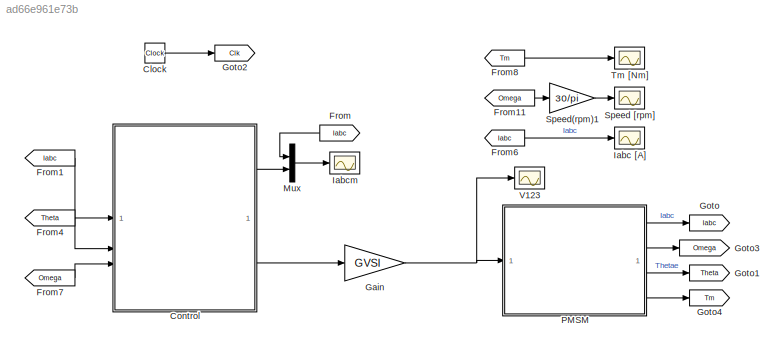
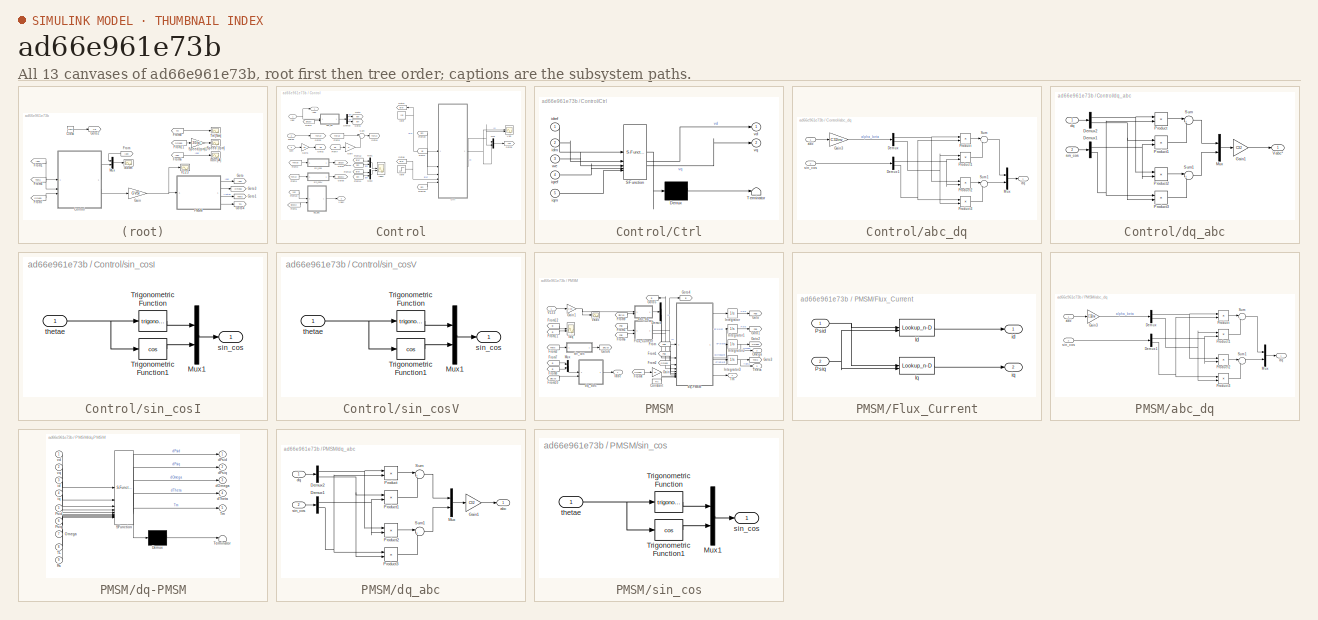
[diagram: thumbnail index - all 13 canvases of the model, root first then tree order]
MODEL slx_ad66e961e73b
KIND model
CONFIG AbsTol = auto
CONFIG EnableMultiTasking = off
CONFIG FixedStep = Tsim
CONFIG MaxStep = Tsim
CONFIG MinStep = auto
CONFIG RelTol = 1e-3
CONFIG SampleTimeConstraint = Unconstrained
CONFIG SolverName = ode23tb
CONFIG StartTime = 0.0
CONFIG StopTime = 1
BLOCK [Clock] Clock
  Decimation = 1
  NameLocation = top
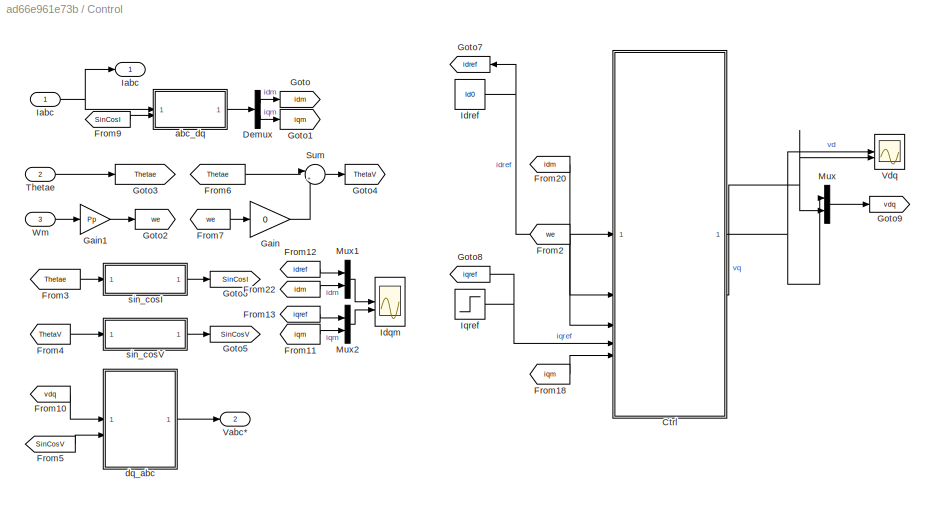
BLOCK [SubSystem] Control
BLOCK [SubSystem] Control/Ctrl
  ErrorFcn = Stateflow.Translate.translate
  PermitHierarchicalResolution = ExplicitOnly
  SFBlockType = MATLAB Function
  TreatAsAtomicUnit = on
BLOCK [Demux] Control/Ctrl/ Demux 
  Outputs = 1
BLOCK [S-Function] Control/Ctrl/ SFunction 
  EnableBusSupport = off
  FunctionName = sf_sfun
  Parameters = Kid,Kiq,Kpd,Kpq,Ld0,Lq0,Psif0,Ts,Ud0,Uq0,Vd0,Vq0
  PortCounts = [5 3]
  SFcnIsStateOwnerBlock = off
  SFunctionDeploymentMode = off
  Tag = Stateflow S-Function 4
BLOCK [Terminator] Control/Ctrl/ Terminator 
BLOCK [Inport] Control/Ctrl/idm
  Port = 2
BLOCK [Inport] Control/Ctrl/idref
BLOCK [Inport] Control/Ctrl/iqm
  Port = 5
BLOCK [Inport] Control/Ctrl/iqref
  Port = 4
BLOCK [Outport] Control/Ctrl/vd
BLOCK [Outport] Control/Ctrl/vq
  Port = 2
BLOCK [Inport] Control/Ctrl/we
  Port = 3
BLOCK [Demux] Control/Demux
  Outputs = 2
BLOCK [From] Control/From10
  GotoTag = vdq
  TagVisibility = global
BLOCK [From] Control/From11
  GotoTag = iqm
BLOCK [From] Control/From12
  GotoTag = idref
BLOCK [From] Control/From13
  GotoTag = iqref
BLOCK [From] Control/From18
  GotoTag = iqm
BLOCK [From] Control/From2
  GotoTag = we
BLOCK [From] Control/From20
  GotoTag = idm
BLOCK [From] Control/From22
  GotoTag = idm
BLOCK [From] Control/From3
  GotoTag = Thetae
BLOCK [From] Control/From4
  GotoTag = ThetaV
BLOCK [From] Control/From5
  GotoTag = SinCosV
BLOCK [From] Control/From6
  GotoTag = Thetae
BLOCK [From] Control/From7
  GotoTag = we
BLOCK [From] Control/From9
  GotoTag = SinCosI
BLOCK [Gain] Control/Gain
  Gain = 0
BLOCK [Gain] Control/Gain1
  Gain = Pp
BLOCK [Goto] Control/Goto
  GotoTag = idm
BLOCK [Goto] Control/Goto1
  GotoTag = iqm
BLOCK [Goto] Control/Goto2
  GotoTag = we
BLOCK [Goto] Control/Goto3
  GotoTag = Thetae
BLOCK [Goto] Control/Goto4
  GotoTag = ThetaV
BLOCK [Goto] Control/Goto5
  GotoTag = SinCosV
BLOCK [Goto] Control/Goto6
  GotoTag = SinCosI
BLOCK [Goto] Control/Goto7
  GotoTag = idref
BLOCK [Goto] Control/Goto8
  GotoTag = iqref
BLOCK [Goto] Control/Goto9
  GotoTag = vdq
  TagVisibility = global
BLOCK [Inport] Control/Iabc
BLOCK [Outport] Control/Iabc 
BLOCK [Scope] Control/Idqm
  Floating = off
  NumInputPorts = 2
  ScopeSpecificationString = Simulink.scopes.TimeScopeBlockCfg('CurrentConfiguration', extmgr.ConfigurationSet(extmgr.Configuration('Core','General UI',true,'FigureColor',[1 1 1]),extmgr.Configuration('Core','Source UI',true),extmgr.Configuration('Sources','WiredSimulink',true,'DataLoggingVariableName','ScopeData1'),extmgr.Configuration('Visuals','Time Domain',true,'SerializedDisplays',{struct('MinYLimReal','82.74399','MaxYLi...<+1907ch>
BLOCK [Constant] Control/Idref
  Value = Id0
BLOCK [Step] Control/Iqref
  After = Iq0+10
  Before = Iq0
  Time = Tstep
BLOCK [Mux] Control/Mux
  DisplayOption = bar
  Inputs = 2
BLOCK [Mux] Control/Mux1
  DisplayOption = bar
  Inputs = 2
BLOCK [Mux] Control/Mux2
  DisplayOption = bar
  Inputs = 2
BLOCK [Sum] Control/Sum
  Inputs = |++
BLOCK [Inport] Control/Thetae
  Port = 2
BLOCK [Outport] Control/Vabc*
  Port = 2
BLOCK [Scope] Control/Vdq
  Floating = off
  NumInputPorts = 2
  ScopeSpecificationString = Simulink.scopes.TimeScopeBlockCfg('CurrentConfiguration', extmgr.ConfigurationSet(extmgr.Configuration('Core','General UI',true,'FigureColor',[1 1 1]),extmgr.Configuration('Core','Source UI',true),extmgr.Configuration('Sources','WiredSimulink',true,'DataLoggingVariableName','ScopeData2'),extmgr.Configuration('Visuals','Time Domain',true,'SerializedDisplays',{struct('MinYLimReal','-481.21462','MaxY...<+1669ch>
BLOCK [Inport] Control/Wm
  Port = 3
BLOCK [SubSystem] Control/abc_dq
BLOCK [Demux] Control/abc_dq/Demux
  DisplayOption = none
  Outputs = 2
BLOCK [Demux] Control/abc_dq/Demux1
  DisplayOption = none
  Outputs = 2
BLOCK [Gain] Control/abc_dq/Gain3
  Gain = C32inv
  Multiplication = Matrix(K*u)
  OutDataTypeStr = Inherit: Same as input
  ParamDataTypeStr = Inherit: Same as input
BLOCK [Mux] Control/abc_dq/Mux
  DisplayOption = bar
  Inputs = 2
BLOCK [Product] Control/abc_dq/Product
  InputSameDT = on
  OutDataTypeStr = Inherit: Same as first input
  RndMeth = Zero
  SaturateOnIntegerOverflow = on
BLOCK [Product] Control/abc_dq/Product1
  InputSameDT = on
  OutDataTypeStr = Inherit: Same as first input
  RndMeth = Zero
  SaturateOnIntegerOverflow = on
BLOCK [Product] Control/abc_dq/Product2
  InputSameDT = on
  OutDataTypeStr = Inherit: Same as first input
  RndMeth = Zero
  SaturateOnIntegerOverflow = on
BLOCK [Product] Control/abc_dq/Product3
  InputSameDT = on
  OutDataTypeStr = Inherit: Same as first input
  RndMeth = Zero
  SaturateOnIntegerOverflow = on
BLOCK [Sum] Control/abc_dq/Sum
  InputSameDT = on
  Inputs = |++
  OutDataTypeStr = Inherit: Same as first input
  SaturateOnIntegerOverflow = on
BLOCK [Sum] Control/abc_dq/Sum1
  InputSameDT = on
  Inputs = |-+
  OutDataTypeStr = Inherit: Same as first input
  SaturateOnIntegerOverflow = on
BLOCK [Inport] Control/abc_dq/abc
BLOCK [Outport] Control/abc_dq/dq
BLOCK [Inport] Control/abc_dq/sin_cos
  Port = 2
BLOCK [SubSystem] Control/dq_abc
BLOCK [Demux] Control/dq_abc/Demux1
  DisplayOption = none
  Outputs = 2
BLOCK [Demux] Control/dq_abc/Demux2
  DisplayOption = none
  Outputs = 2
BLOCK [Gain] Control/dq_abc/Gain1
  Gain = C32
  Multiplication = Matrix(K*u)
  OutDataTypeStr = Inherit: Same as input
  ParamDataTypeStr = Inherit: Same as input
BLOCK [Mux] Control/dq_abc/Mux
  DisplayOption = bar
  Inputs = 2
BLOCK [Product] Control/dq_abc/Product
  InputSameDT = on
  OutDataTypeStr = Inherit: Same as first input
  RndMeth = Zero
  SaturateOnIntegerOverflow = on
BLOCK [Product] Control/dq_abc/Product1
  InputSameDT = on
  OutDataTypeStr = Inherit: Same as first input
  RndMeth = Zero
  SaturateOnIntegerOverflow = on
BLOCK [Product] Control/dq_abc/Product2
  InputSameDT = on
  OutDataTypeStr = Inherit: Same as first input
  RndMeth = Zero
  SaturateOnIntegerOverflow = on
BLOCK [Product] Control/dq_abc/Product3
  InputSameDT = on
  OutDataTypeStr = Inherit: Same as first input
  RndMeth = Zero
  SaturateOnIntegerOverflow = on
BLOCK [Sum] Control/dq_abc/Sum
  InputSameDT = on
  Inputs = |+-
  OutDataTypeStr = Inherit: Same as first input
  SaturateOnIntegerOverflow = on
BLOCK [Sum] Control/dq_abc/Sum1
  InputSameDT = on
  Inputs = |++
  OutDataTypeStr = Inherit: Same as first input
  SaturateOnIntegerOverflow = on
BLOCK [Outport] Control/dq_abc/Vabc*
BLOCK [Inport] Control/dq_abc/dq
BLOCK [Inport] Control/dq_abc/sin_cos
  Port = 2
BLOCK [SubSystem] Control/sin_cosI
BLOCK [Mux] Control/sin_cosI/Mux1
  DisplayOption = bar
  Inputs = 2
BLOCK [Trigonometry] Control/sin_cosI/Trigonometric Function
BLOCK [Trigonometry] Control/sin_cosI/Trigonometric Function1
  Operator = cos
BLOCK [Outport] Control/sin_cosI/sin_cos
BLOCK [Inport] Control/sin_cosI/thetae
BLOCK [SubSystem] Control/sin_cosV
BLOCK [Mux] Control/sin_cosV/Mux1
  DisplayOption = bar
  Inputs = 2
BLOCK [Trigonometry] Control/sin_cosV/Trigonometric Function
BLOCK [Trigonometry] Control/sin_cosV/Trigonometric Function1
  Operator = cos
BLOCK [Outport] Control/sin_cosV/sin_cos
BLOCK [Inport] Control/sin_cosV/thetae
BLOCK [From] From
  GotoTag = Iabc
BLOCK [From] From1
  GotoTag = Iabc
BLOCK [From] From11
  GotoTag = Omega
BLOCK [From] From4
  GotoTag = Theta
BLOCK [From] From6
  GotoTag = Iabc
BLOCK [From] From7
  GotoTag = Omega
BLOCK [From] From8
  GotoTag = Tm
  TagVisibility = global
BLOCK [Gain] Gain
  Gain = GVSI
BLOCK [Goto] Goto
  GotoTag = Iabc
BLOCK [Goto] Goto1
  GotoTag = Theta
BLOCK [Goto] Goto2
  GotoTag = Clk
BLOCK [Goto] Goto3
  GotoTag = Omega
BLOCK [Goto] Goto4
  GotoTag = Tm
BLOCK [Scope] Iabc [A]
  Floating = off
  NumInputPorts = 1
  ScopeSpecificationString = Simulink.scopes.TimeScopeBlockCfg('CurrentConfiguration', extmgr.ConfigurationSet(extmgr.Configuration('Core','General UI',true,'FigureColor',[1 1 1]),extmgr.Configuration('Core','Source UI',true),extmgr.Configuration('Sources','WiredSimulink',true,'DataLoggingVariableName','ScopeData1','DataLogging',true,'DataLoggingSaveFormat','StructureWithTime'),extmgr.Configuration('Visuals','Time Domain',tru...<+1940ch>
BLOCK [Scope] Iabcm
  Floating = off
  NumInputPorts = 1
  ScopeSpecificationString = Simulink.scopes.TimeScopeBlockCfg('CurrentConfiguration', extmgr.ConfigurationSet(extmgr.Configuration('Core','General UI',true,'FigureColor',[1 1 1]),extmgr.Configuration('Core','Source UI',true),extmgr.Configuration('Sources','WiredSimulink',true,'DataLoggingVariableName','ScopeData1'),extmgr.Configuration('Visuals','Time Domain',true,'SerializedDisplays',{struct('MinYLimReal','-101.26957','MaxY...<+1790ch>
BLOCK [Mux] Mux
  DisplayOption = bar
  Inputs = 2
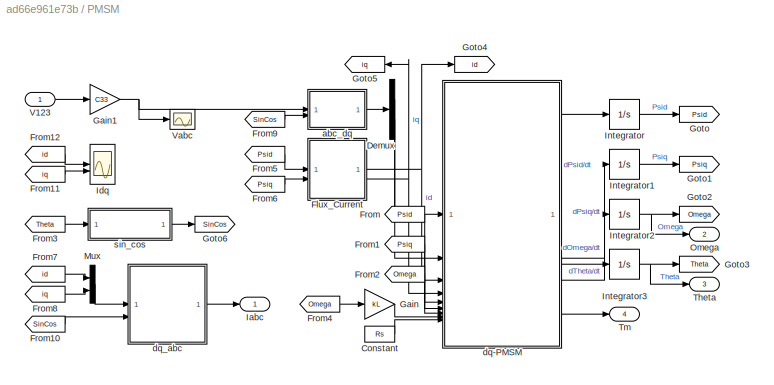
BLOCK [SubSystem] PMSM
BLOCK [Constant] PMSM/Constant
  Value = Rs
BLOCK [Demux] PMSM/Demux
  Outputs = 2
BLOCK [SubSystem] PMSM/Flux_Current
BLOCK [Lookup_n-D] PMSM/Flux_Current/Id
  BreakpointsForDimension1 = Psidv
  BreakpointsForDimension2 = Psiqv
  InputPortMap = u0,u1
  InternalRulePriority = Speed
  RndMeth = Simplest
  Table = Idd
BLOCK [Lookup_n-D] PMSM/Flux_Current/Iq
  BreakpointsForDimension1 = Psidv
  BreakpointsForDimension2 = Psiqv
  InputPortMap = u0,u1
  InternalRulePriority = Speed
  RndMeth = Simplest
  Table = Iqq
BLOCK [Inport] PMSM/Flux_Current/Psid
BLOCK [Inport] PMSM/Flux_Current/Psiq
  Port = 2
BLOCK [Outport] PMSM/Flux_Current/id
BLOCK [Outport] PMSM/Flux_Current/iq
  Port = 2
BLOCK [From] PMSM/From
  GotoTag = Psid
BLOCK [From] PMSM/From1
  GotoTag = Psiq
BLOCK [From] PMSM/From10
  GotoTag = SinCos
BLOCK [From] PMSM/From11
  GotoTag = iq
BLOCK [From] PMSM/From12
  GotoTag = id
BLOCK [From] PMSM/From2
  GotoTag = Omega
BLOCK [From] PMSM/From3
  GotoTag = Theta
BLOCK [From] PMSM/From4
  GotoTag = Omega
BLOCK [From] PMSM/From5
  GotoTag = Psid
BLOCK [From] PMSM/From6
  GotoTag = Psiq
BLOCK [From] PMSM/From7
  GotoTag = id
BLOCK [From] PMSM/From8
  GotoTag = iq
BLOCK [From] PMSM/From9
  GotoTag = SinCos
BLOCK [Gain] PMSM/Gain
  Gain = kL
BLOCK [Gain] PMSM/Gain1
  Gain = C33
  Multiplication = Matrix(K*u)
BLOCK [Goto] PMSM/Goto
  GotoTag = Psid
BLOCK [Goto] PMSM/Goto1
  GotoTag = Psiq
BLOCK [Goto] PMSM/Goto2
  GotoTag = Omega
BLOCK [Goto] PMSM/Goto3
  GotoTag = Theta
BLOCK [Goto] PMSM/Goto4
  GotoTag = id
BLOCK [Goto] PMSM/Goto5
  GotoTag = iq
BLOCK [Goto] PMSM/Goto6
  GotoTag = SinCos
BLOCK [Outport] PMSM/Iabc
BLOCK [Scope] PMSM/Idq
  Floating = off
  NumInputPorts = 2
  ScopeSpecificationString = Simulink.scopes.TimeScopeBlockCfg('CurrentConfiguration', extmgr.ConfigurationSet(extmgr.Configuration('Core','General UI',true,'FigureColor',[1 1 1]),extmgr.Configuration('Core','Source UI',true),extmgr.Configuration('Sources','WiredSimulink',true,'DataLoggingVariableName','ScopeData2'),extmgr.Configuration('Visuals','Time Domain',true,'SerializedDisplays',{struct('MinYLimReal','-539.8718','MaxYL...<+1826ch>
BLOCK [Integrator] PMSM/Integrator
  InitialCondition = Psid0
BLOCK [Integrator] PMSM/Integrator1
  InitialCondition = Psiq0
BLOCK [Integrator] PMSM/Integrator2
  InitialCondition = Wm0
BLOCK [Integrator] PMSM/Integrator3
  InitialCondition = Thetae0
BLOCK [Mux] PMSM/Mux
  DisplayOption = bar
  Inputs = 2
BLOCK [Outport] PMSM/Omega
  Port = 2
BLOCK [Outport] PMSM/Theta
  Port = 3
BLOCK [Outport] PMSM/Tm
  Port = 4
BLOCK [Inport] PMSM/V123
BLOCK [Scope] PMSM/Vabc
  Floating = off
  NumInputPorts = 1
  ScopeSpecificationString = Simulink.scopes.TimeScopeBlockCfg('CurrentConfiguration', extmgr.ConfigurationSet(extmgr.Configuration('Core','General UI',true,'FigureColor',[1 1 1]),extmgr.Configuration('Core','Source UI',true),extmgr.Configuration('Sources','WiredSimulink',true,'DataLoggingVariableName','ScopeData1'),extmgr.Configuration('Visuals','Time Domain',true,'SerializedDisplays',{struct('MinYLimReal','-539.8718','MaxYL...<+1841ch>
BLOCK [SubSystem] PMSM/abc_dq
BLOCK [Demux] PMSM/abc_dq/Demux
  DisplayOption = none
  Outputs = 2
BLOCK [Demux] PMSM/abc_dq/Demux1
  DisplayOption = none
  Outputs = 2
BLOCK [Gain] PMSM/abc_dq/Gain3
  Gain = C32inv
  Multiplication = Matrix(K*u)
  OutDataTypeStr = Inherit: Same as input
  ParamDataTypeStr = Inherit: Same as input
BLOCK [Mux] PMSM/abc_dq/Mux
  DisplayOption = bar
  Inputs = 2
BLOCK [Product] PMSM/abc_dq/Product
  InputSameDT = on
  OutDataTypeStr = Inherit: Same as first input
  RndMeth = Zero
  SaturateOnIntegerOverflow = on
BLOCK [Product] PMSM/abc_dq/Product1
  InputSameDT = on
  OutDataTypeStr = Inherit: Same as first input
  RndMeth = Zero
  SaturateOnIntegerOverflow = on
BLOCK [Product] PMSM/abc_dq/Product2
  InputSameDT = on
  OutDataTypeStr = Inherit: Same as first input
  RndMeth = Zero
  SaturateOnIntegerOverflow = on
BLOCK [Product] PMSM/abc_dq/Product3
  InputSameDT = on
  OutDataTypeStr = Inherit: Same as first input
  RndMeth = Zero
  SaturateOnIntegerOverflow = on
BLOCK [Sum] PMSM/abc_dq/Sum
  InputSameDT = on
  Inputs = |++
  OutDataTypeStr = Inherit: Same as first input
  SaturateOnIntegerOverflow = on
BLOCK [Sum] PMSM/abc_dq/Sum1
  InputSameDT = on
  Inputs = |-+
  OutDataTypeStr = Inherit: Same as first input
  SaturateOnIntegerOverflow = on
BLOCK [Inport] PMSM/abc_dq/abc
BLOCK [Outport] PMSM/abc_dq/dq
BLOCK [Inport] PMSM/abc_dq/sin_cos
  Port = 2
BLOCK [SubSystem] PMSM/dq-PMSM
  ErrorFcn = Stateflow.Translate.translate
  PermitHierarchicalResolution = ExplicitOnly
  SFBlockType = MATLAB Function
  TreatAsAtomicUnit = on
BLOCK [Demux] PMSM/dq-PMSM/ Demux 
  Outputs = 1
BLOCK [S-Function] PMSM/dq-PMSM/ SFunction 
  EnableBusSupport = on
  FunctionName = sf_sfun
  Parameters = J,Pp,f
  PortCounts = [9 6]
  SFcnIsStateOwnerBlock = off
  SFunctionDeploymentMode = off
  Tag = Stateflow S-Function 1
BLOCK [Terminator] PMSM/dq-PMSM/ Terminator 
BLOCK [Inport] PMSM/dq-PMSM/Omega
  Port = 7
BLOCK [Inport] PMSM/dq-PMSM/Psid
  Port = 5
BLOCK [Inport] PMSM/dq-PMSM/Psiq
  Port = 6
BLOCK [Inport] PMSM/dq-PMSM/Rs
  Port = 9
BLOCK [Inport] PMSM/dq-PMSM/TL
  Port = 8
BLOCK [Outport] PMSM/dq-PMSM/Tm
  Port = 5
BLOCK [Outport] PMSM/dq-PMSM/dOmega
  Port = 3
BLOCK [Outport] PMSM/dq-PMSM/dPsid
BLOCK [Outport] PMSM/dq-PMSM/dPsiq
  Port = 2
BLOCK [Outport] PMSM/dq-PMSM/dTheta
  Port = 4
BLOCK [Inport] PMSM/dq-PMSM/id
  Port = 3
BLOCK [Inport] PMSM/dq-PMSM/iq
  Port = 4
BLOCK [Inport] PMSM/dq-PMSM/vd
BLOCK [Inport] PMSM/dq-PMSM/vq
  Port = 2
BLOCK [SubSystem] PMSM/dq_abc
BLOCK [Demux] PMSM/dq_abc/Demux1
  DisplayOption = none
  Outputs = 2
BLOCK [Demux] PMSM/dq_abc/Demux2
  DisplayOption = none
  Outputs = 2
BLOCK [Gain] PMSM/dq_abc/Gain1
  Gain = C32
  Multiplication = Matrix(K*u)
  OutDataTypeStr = Inherit: Same as input
  ParamDataTypeStr = Inherit: Same as input
BLOCK [Mux] PMSM/dq_abc/Mux
  DisplayOption = bar
  Inputs = 2
BLOCK [Product] PMSM/dq_abc/Product
  InputSameDT = on
  OutDataTypeStr = Inherit: Same as first input
  RndMeth = Zero
  SaturateOnIntegerOverflow = on
BLOCK [Product] PMSM/dq_abc/Product1
  InputSameDT = on
  OutDataTypeStr = Inherit: Same as first input
  RndMeth = Zero
  SaturateOnIntegerOverflow = on
BLOCK [Product] PMSM/dq_abc/Product2
  InputSameDT = on
  OutDataTypeStr = Inherit: Same as first input
  RndMeth = Zero
  SaturateOnIntegerOverflow = on
BLOCK [Product] PMSM/dq_abc/Product3
  InputSameDT = on
  OutDataTypeStr = Inherit: Same as first input
  RndMeth = Zero
  SaturateOnIntegerOverflow = on
BLOCK [Sum] PMSM/dq_abc/Sum
  InputSameDT = on
  Inputs = |+-
  OutDataTypeStr = Inherit: Same as first input
  SaturateOnIntegerOverflow = on
BLOCK [Sum] PMSM/dq_abc/Sum1
  InputSameDT = on
  Inputs = |++
  OutDataTypeStr = Inherit: Same as first input
  SaturateOnIntegerOverflow = on
BLOCK [Outport] PMSM/dq_abc/abc
BLOCK [Inport] PMSM/dq_abc/dq
BLOCK [Inport] PMSM/dq_abc/sin_cos
  Port = 2
BLOCK [SubSystem] PMSM/sin_cos
BLOCK [Mux] PMSM/sin_cos/Mux1
  DisplayOption = bar
  Inputs = 2
BLOCK [Trigonometry] PMSM/sin_cos/Trigonometric Function
BLOCK [Trigonometry] PMSM/sin_cos/Trigonometric Function1
  Operator = cos
BLOCK [Outport] PMSM/sin_cos/sin_cos
BLOCK [Inport] PMSM/sin_cos/thetae
BLOCK [Scope] Speed [rpm]
  Floating = off
  NumInputPorts = 1
  ScopeSpecificationString = Simulink.scopes.TimeScopeBlockCfg('CurrentConfiguration', extmgr.ConfigurationSet(extmgr.Configuration('Core','General UI',true,'FigureColor',[1 1 1]),extmgr.Configuration('Core','Source UI',true),extmgr.Configuration('Sources','WiredSimulink',true,'DataLoggingVariableName','ScopeData2'),extmgr.Configuration('Visuals','Time Domain',true,'SerializedDisplays',{struct('MinYLimReal','4357.14286','MaxY...<+1593ch>
BLOCK [Gain] Speed(rpm)1
  Gain = 30/pi
BLOCK [Scope] Tm [Nm]
  Floating = off
  NumInputPorts = 1
  ScopeSpecificationString = Simulink.scopes.TimeScopeBlockCfg('CurrentConfiguration', extmgr.ConfigurationSet(extmgr.Configuration('Core','General UI',true,'FigureColor',[1 1 1]),extmgr.Configuration('Core','Source UI',true),extmgr.Configuration('Sources','WiredSimulink',true,'DataLoggingVariableName','ScopeData3'),extmgr.Configuration('Visuals','Time Domain',true,'SerializedDisplays',{struct('MinYLimReal','36.33321','MaxYLi...<+1586ch>
BLOCK [Scope] V123 
  Floating = off
  NumInputPorts = 1
  ScopeSpecificationString = Simulink.scopes.TimeScopeBlockCfg('CurrentConfiguration', extmgr.ConfigurationSet(extmgr.Configuration('Core','General UI',true,'FigureColor',[1 1 1]),extmgr.Configuration('Core','Source UI',true),extmgr.Configuration('Sources','WiredSimulink',true,'DataLoggingVariableName','ScopeData1'),extmgr.Configuration('Visuals','Time Domain',true,'SerializedDisplays',{struct('MinYLimReal','-161.22916','MaxY...<+1663ch>
LINE Clock:1 -> Goto2:1
NET Control/Ctrl:1 -> Control/Mux:1, Control/Vdq:1
NET Control/Ctrl:2 -> Control/Mux:2, Control/Vdq:2
LINE Control/Demux:1 -> Control/Goto:1
LINE Control/Demux:2 -> Control/Goto1:1
LINE Control/From10:1 -> Control/dq_abc:1
LINE Control/From11:1 -> Control/Mux2:2
LINE Control/From12:1 -> Control/Mux1:1
LINE Control/From13:1 -> Control/Mux2:1
LINE Control/From18:1 -> Control/Ctrl:5
LINE Control/From20:1 -> Control/Ctrl:2
LINE Control/From22:1 -> Control/Mux1:2
LINE Control/From2:1 -> Control/Ctrl:3
LINE Control/From3:1 -> Control/sin_cosI:1
LINE Control/From4:1 -> Control/sin_cosV:1
LINE Control/From5:1 -> Control/dq_abc:2
LINE Control/From6:1 -> Control/Sum:1
LINE Control/From7:1 -> Control/Gain:1
LINE Control/From9:1 -> Control/abc_dq:2
LINE Control/Gain1:1 -> Control/Goto2:1
LINE Control/Gain:1 -> Control/Sum:2
NET Control/Iabc:1 -> Control/Iabc :1, Control/abc_dq:1
NET Control/Idref:1 -> Control/Ctrl:1, Control/Goto7:1
NET Control/Iqref:1 -> Control/Ctrl:4, Control/Goto8:1
LINE Control/Mux1:1 -> Control/Idqm:1
LINE Control/Mux2:1 -> Control/Idqm:2
LINE Control/Mux:1 -> Control/Goto9:1
LINE Control/Sum:1 -> Control/Goto4:1
LINE Control/Thetae:1 -> Control/Goto3:1
LINE Control/Wm:1 -> Control/Gain1:1
NET Control/abc_dq/Demux1:1 -> Control/abc_dq/Product1:2, Control/abc_dq/Product2:2
NET Control/abc_dq/Demux1:2 -> Control/abc_dq/Product3:1, Control/abc_dq/Product:2
NET Control/abc_dq/Demux:1 -> Control/abc_dq/Product2:1, Control/abc_dq/Product:1
NET Control/abc_dq/Demux:2 -> Control/abc_dq/Product1:1, Control/abc_dq/Product3:2
LINE Control/abc_dq/Gain3:1 -> Control/abc_dq/Demux:1
LINE Control/abc_dq/Mux:1 -> Control/abc_dq/dq:1
LINE Control/abc_dq/Product1:1 -> Control/abc_dq/Sum:2
LINE Control/abc_dq/Product2:1 -> Control/abc_dq/Sum1:1
LINE Control/abc_dq/Product3:1 -> Control/abc_dq/Sum1:2
LINE Control/abc_dq/Product:1 -> Control/abc_dq/Sum:1
LINE Control/abc_dq/Sum1:1 -> Control/abc_dq/Mux:2
LINE Control/abc_dq/Sum:1 -> Control/abc_dq/Mux:1
LINE Control/abc_dq/abc:1 -> Control/abc_dq/Gain3:1
LINE Control/abc_dq/sin_cos:1 -> Control/abc_dq/Demux1:1
LINE Control/abc_dq:1 -> Control/Demux:1
NET Control/dq_abc/Demux1:1 -> Control/dq_abc/Product1:2, Control/dq_abc/Product2:2
NET Control/dq_abc/Demux1:2 -> Control/dq_abc/Product3:1, Control/dq_abc/Product:2
NET Control/dq_abc/Demux2:1 -> Control/dq_abc/Product2:1, Control/dq_abc/Product:1
NET Control/dq_abc/Demux2:2 -> Control/dq_abc/Product1:1, Control/dq_abc/Product3:2
LINE Control/dq_abc/Gain1:1 -> Control/dq_abc/Vabc*:1
LINE Control/dq_abc/Mux:1 -> Control/dq_abc/Gain1:1
LINE Control/dq_abc/Product1:1 -> Control/dq_abc/Sum:2
LINE Control/dq_abc/Product2:1 -> Control/dq_abc/Sum1:1
LINE Control/dq_abc/Product3:1 -> Control/dq_abc/Sum1:2
LINE Control/dq_abc/Product:1 -> Control/dq_abc/Sum:1
LINE Control/dq_abc/Sum1:1 -> Control/dq_abc/Mux:2
LINE Control/dq_abc/Sum:1 -> Control/dq_abc/Mux:1
LINE Control/dq_abc/dq:1 -> Control/dq_abc/Demux2:1
LINE Control/dq_abc/sin_cos:1 -> Control/dq_abc/Demux1:1
LINE Control/dq_abc:1 -> Control/Vabc*:1
LINE Control/sin_cosI/Mux1:1 -> Control/sin_cosI/sin_cos:1
LINE Control/sin_cosI/Trigonometric Function1:1 -> Control/sin_cosI/Mux1:2
LINE Control/sin_cosI/Trigonometric Function:1 -> Control/sin_cosI/Mux1:1
NET Control/sin_cosI/thetae:1 -> Control/sin_cosI/Trigonometric Function1:1, Control/sin_cosI/Trigonometric Function:1
LINE Control/sin_cosI:1 -> Control/Goto6:1
LINE Control/sin_cosV/Mux1:1 -> Control/sin_cosV/sin_cos:1
LINE Control/sin_cosV/Trigonometric Function1:1 -> Control/sin_cosV/Mux1:2
LINE Control/sin_cosV/Trigonometric Function:1 -> Control/sin_cosV/Mux1:1
NET Control/sin_cosV/thetae:1 -> Control/sin_cosV/Trigonometric Function1:1, Control/sin_cosV/Trigonometric Function:1
LINE Control/sin_cosV:1 -> Control/Goto5:1
LINE Control:1 -> Mux:2
LINE Control:2 -> Gain:1
LINE From11:1 -> Speed(rpm)1:1
LINE From1:1 -> Control:1
LINE From4:1 -> Control:2
LINE From6:1 -> Iabc [A]:1
LINE From7:1 -> Control:3
LINE From8:1 -> Tm [Nm]:1
LINE From:1 -> Mux:1
NET Gain:1 -> PMSM:1, V123 :1
LINE Mux:1 -> Iabcm:1
LINE PMSM/Constant:1 -> PMSM/dq-PMSM:9
LINE PMSM/Demux:1 -> PMSM/dq-PMSM:1
LINE PMSM/Demux:2 -> PMSM/dq-PMSM:2
LINE PMSM/Flux_Current/Id:1 -> PMSM/Flux_Current/id:1
LINE PMSM/Flux_Current/Iq:1 -> PMSM/Flux_Current/iq:1
NET PMSM/Flux_Current/Psid:1 -> PMSM/Flux_Current/Id:1, PMSM/Flux_Current/Iq:1
NET PMSM/Flux_Current/Psiq:1 -> PMSM/Flux_Current/Id:2, PMSM/Flux_Current/Iq:2
NET PMSM/Flux_Current:1 -> PMSM/Goto4:1, PMSM/dq-PMSM:3
NET PMSM/Flux_Current:2 -> PMSM/Goto5:1, PMSM/dq-PMSM:4
LINE PMSM/From10:1 -> PMSM/dq_abc:2
LINE PMSM/From11:1 -> PMSM/Idq:2
LINE PMSM/From12:1 -> PMSM/Idq:1
LINE PMSM/From1:1 -> PMSM/dq-PMSM:6
LINE PMSM/From2:1 -> PMSM/dq-PMSM:7
LINE PMSM/From3:1 -> PMSM/sin_cos:1
LINE PMSM/From4:1 -> PMSM/Gain:1
LINE PMSM/From5:1 -> PMSM/Flux_Current:1
LINE PMSM/From6:1 -> PMSM/Flux_Current:2
LINE PMSM/From7:1 -> PMSM/Mux:1
LINE PMSM/From8:1 -> PMSM/Mux:2
LINE PMSM/From9:1 -> PMSM/abc_dq:2
LINE PMSM/From:1 -> PMSM/dq-PMSM:5
NET PMSM/Gain1:1 -> PMSM/Vabc:1, PMSM/abc_dq:1
LINE PMSM/Gain:1 -> PMSM/dq-PMSM:8
LINE PMSM/Integrator1:1 -> PMSM/Goto1:1
NET PMSM/Integrator2:1 -> PMSM/Goto2:1, PMSM/Omega:1
NET PMSM/Integrator3:1 -> PMSM/Goto3:1, PMSM/Theta:1
LINE PMSM/Integrator:1 -> PMSM/Goto:1
LINE PMSM/Mux:1 -> PMSM/dq_abc:1
LINE PMSM/V123:1 -> PMSM/Gain1:1
NET PMSM/abc_dq/Demux1:1 -> PMSM/abc_dq/Product1:2, PMSM/abc_dq/Product2:2
NET PMSM/abc_dq/Demux1:2 -> PMSM/abc_dq/Product3:1, PMSM/abc_dq/Product:2
NET PMSM/abc_dq/Demux:1 -> PMSM/abc_dq/Product2:1, PMSM/abc_dq/Product:1
NET PMSM/abc_dq/Demux:2 -> PMSM/abc_dq/Product1:1, PMSM/abc_dq/Product3:2
LINE PMSM/abc_dq/Gain3:1 -> PMSM/abc_dq/Demux:1
LINE PMSM/abc_dq/Mux:1 -> PMSM/abc_dq/dq:1
LINE PMSM/abc_dq/Product1:1 -> PMSM/abc_dq/Sum:2
LINE PMSM/abc_dq/Product2:1 -> PMSM/abc_dq/Sum1:1
LINE PMSM/abc_dq/Product3:1 -> PMSM/abc_dq/Sum1:2
LINE PMSM/abc_dq/Product:1 -> PMSM/abc_dq/Sum:1
LINE PMSM/abc_dq/Sum1:1 -> PMSM/abc_dq/Mux:2
LINE PMSM/abc_dq/Sum:1 -> PMSM/abc_dq/Mux:1
LINE PMSM/abc_dq/abc:1 -> PMSM/abc_dq/Gain3:1
LINE PMSM/abc_dq/sin_cos:1 -> PMSM/abc_dq/Demux1:1
LINE PMSM/abc_dq:1 -> PMSM/Demux:1
LINE PMSM/dq-PMSM:1 -> PMSM/Integrator:1
LINE PMSM/dq-PMSM:2 -> PMSM/Integrator1:1
LINE PMSM/dq-PMSM:3 -> PMSM/Integrator2:1
LINE PMSM/dq-PMSM:4 -> PMSM/Integrator3:1
LINE PMSM/dq-PMSM:5 -> PMSM/Tm:1
NET PMSM/dq_abc/Demux1:1 -> PMSM/dq_abc/Product1:2, PMSM/dq_abc/Product2:2
NET PMSM/dq_abc/Demux1:2 -> PMSM/dq_abc/Product3:1, PMSM/dq_abc/Product:2
NET PMSM/dq_abc/Demux2:1 -> PMSM/dq_abc/Product2:1, PMSM/dq_abc/Product:1
NET PMSM/dq_abc/Demux2:2 -> PMSM/dq_abc/Product1:1, PMSM/dq_abc/Product3:2
LINE PMSM/dq_abc/Gain1:1 -> PMSM/dq_abc/abc:1
LINE PMSM/dq_abc/Mux:1 -> PMSM/dq_abc/Gain1:1
LINE PMSM/dq_abc/Product1:1 -> PMSM/dq_abc/Sum:2
LINE PMSM/dq_abc/Product2:1 -> PMSM/dq_abc/Sum1:1
LINE PMSM/dq_abc/Product3:1 -> PMSM/dq_abc/Sum1:2
LINE PMSM/dq_abc/Product:1 -> PMSM/dq_abc/Sum:1
LINE PMSM/dq_abc/Sum1:1 -> PMSM/dq_abc/Mux:2
LINE PMSM/dq_abc/Sum:1 -> PMSM/dq_abc/Mux:1
LINE PMSM/dq_abc/dq:1 -> PMSM/dq_abc/Demux2:1
LINE PMSM/dq_abc/sin_cos:1 -> PMSM/dq_abc/Demux1:1
LINE PMSM/dq_abc:1 -> PMSM/Iabc:1
LINE PMSM/sin_cos/Mux1:1 -> PMSM/sin_cos/sin_cos:1
LINE PMSM/sin_cos/Trigonometric Function1:1 -> PMSM/sin_cos/Mux1:2
LINE PMSM/sin_cos/Trigonometric Function:1 -> PMSM/sin_cos/Mux1:1
NET PMSM/sin_cos/thetae:1 -> PMSM/sin_cos/Trigonometric Function1:1, PMSM/sin_cos/Trigonometric Function:1
LINE PMSM/sin_cos:1 -> PMSM/Goto6:1
LINE PMSM:1 -> Goto:1
LINE PMSM:2 -> Goto3:1
LINE PMSM:3 -> Goto1:1
LINE PMSM:4 -> Goto4:1
LINE Speed(rpm)1:1 -> Speed [rpm]:1
note: NET lines group one-source signal fan-out (src -> all destinations, sorted); 1:1 wires keep LINE
CHART PMSM/dq-PMSM states=1 transitions=1
  STATE_LABEL 'eML_blk_kernel()'
  STATE_LABEL 'SCRIPT:\nfunction [dPsid, dPsiq, dOmega, dTheta, Tm] = PMSM(vd, vq, id, iq, Psid, Psiq, Omega, TL, Rs, Pp, f, J)\n\nw=Pp*Omega;\nTm=(3/2)*Pp*(Psid*iq-Psiq*id);   % Clarke\n% Tm=p*(Psid*iq-Psiq*id);       % Concordia\n\ndPsid=vd-Rs*id+w*Psiq;\ndPsiq=vq-Rs*iq-w*Psid;\ndOmega=(Tm-f*Omega-TL)/J;\ndTheta=w;\n\n\n'
CHART Control/Ctrl states=1 transitions=1
  STATE_LABEL 'eML_blk_kernel()'
  STATE_LABEL 'SCRIPT:\nfunction [vd, vq]  = Ctrl(idref, idm, we, iqref, iqm, Psif0, Ld0, Lq0, Kpd, Kpq, Kid, Kiq, Vd0, Vq0, Ud0, Uq0, Ts)\n\npersistent interrd interrq \n\nif isempty(interrd), interrd = Ud0; end\nif isempty(interrq), interrq = Uq0; end\n\nerrd=0;\nerrq=0;\ninterrd=0;\ninterrq=0;\nvd=0;\nvq=0;\n\n'
CHART  states=0 transitions=0
CHART  states=0 transitions=0
